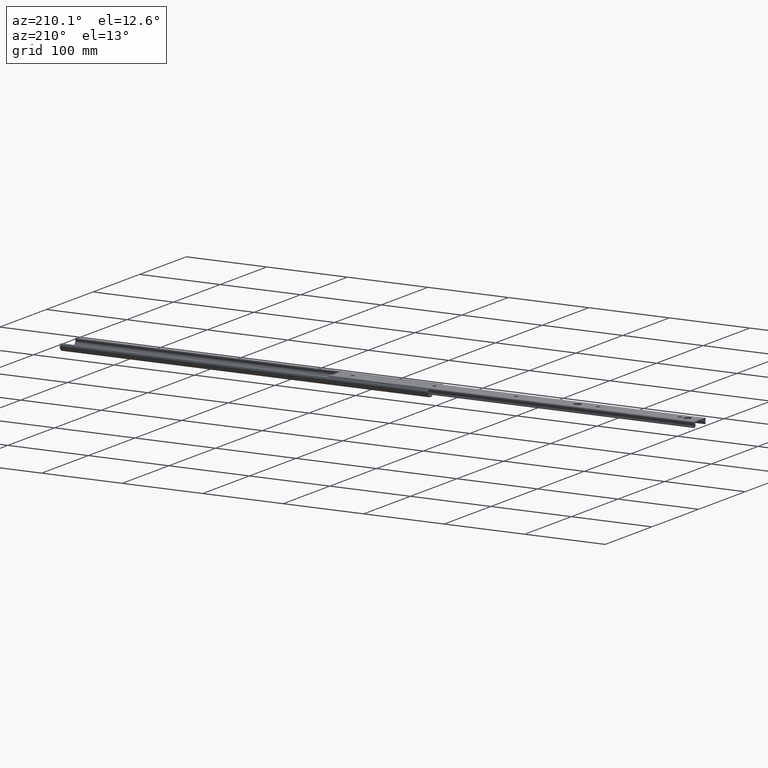
[diagram: clean part render]
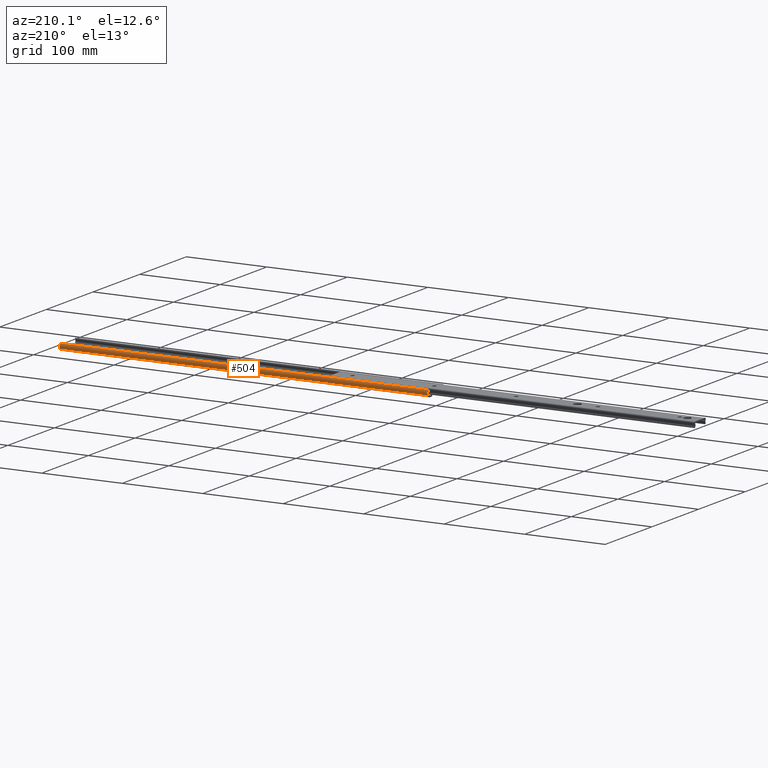
[diagram: same view with one face highlighted and labeled with its STEP entity id]
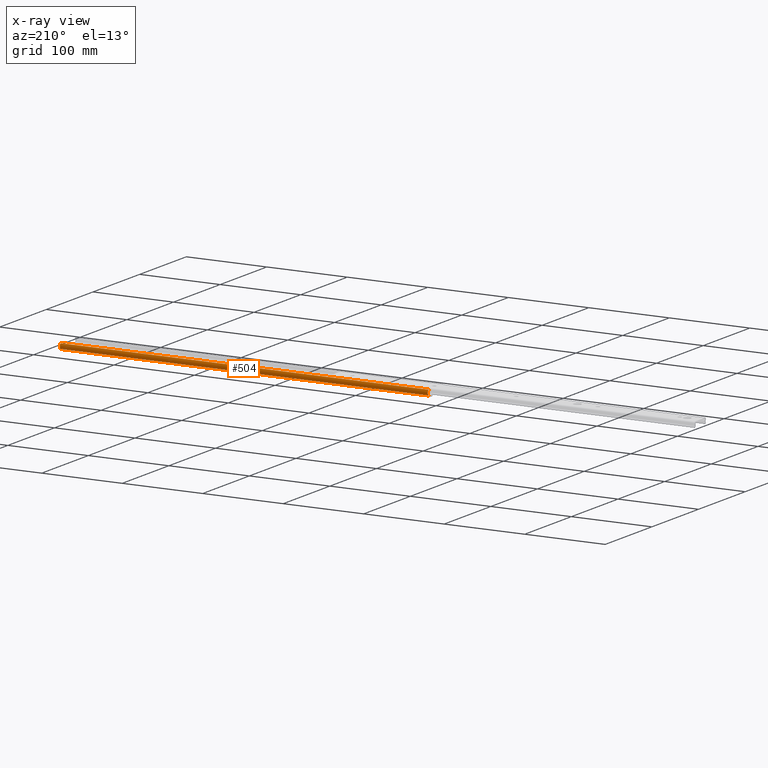
[diagram: x-ray of the same camera — body ghosted, the highlighted face saturated]
A machine part, auxiliary view. The second image highlights one B-rep face of the part: STEP entity #504.
The next image is the same camera in x-ray: the body ghosted, the highlighted face saturated — about 0% of this face is hidden behind the body in this view.
In plain terms, the highlighted cylindrical surface (edge-blend (fillet) strip) has radius 4.1 mm, axis along (-1, -0, -0).
Its self-contained STEP definition (entity closure, byte-faithful):
#112 = EDGE_CURVE ( 'NONE', #824, #4082, #1207, .T. ) ;
#167 = DIRECTION ( 'NONE',  ( 1.000000000000000000, 0.0000000000000000000, 0.0000000000000000000 ) ) ;
#245 = VECTOR ( 'NONE', #1671, 1000.000000000000000 ) ;
#380 = VERTEX_POINT ( 'NONE', #3565 ) ;
#504 = ADVANCED_FACE ( 'NONE', ( #1201 ), #1109, .T. ) ;
#606 = ORIENTED_EDGE ( 'NONE', *, *, #3514, .T. ) ;
#635 = EDGE_CURVE ( 'NONE', #380, #2536, #3069, .T. ) ;
#824 = VERTEX_POINT ( 'NONE', #1551 ) ;
#855 = CARTESIAN_POINT ( 'NONE',  ( 457.1999999999999900, 13.54999999999967700, 5.299999999999384300 ) ) ;
#922 = AXIS2_PLACEMENT_3D ( 'NONE', #855, #3095, #1162 ) ;
#1054 = AXIS2_PLACEMENT_3D ( 'NONE', #2110, #167, #2429 ) ;
#1109 = CYLINDRICAL_SURFACE ( 'NONE', #2548, 4.099999999999988100 ) ;
#1162 = DIRECTION ( 'NONE',  ( 0.0000000000000000000, 0.0000000000000000000, -1.000000000000000000 ) ) ;
#1201 = FACE_OUTER_BOUND ( 'NONE', #2307, .T. ) ;
#1207 = LINE ( 'NONE', #3578, #245 ) ;
#1277 = DIRECTION ( 'NONE',  ( -1.000000000000000000, -0.0000000000000000000, -0.0000000000000000000 ) ) ;
#1354 = DIRECTION ( 'NONE',  ( -1.000000000000000000, -0.0000000000000000000, -0.0000000000000000000 ) ) ;
#1551 = CARTESIAN_POINT ( 'NONE',  ( 457.1999999999999900, 15.68541565040558400, 8.799999999999585000 ) ) ;
#1671 = DIRECTION ( 'NONE',  ( -1.000000000000000000, -0.0000000000000000000, -0.0000000000000000000 ) ) ;
#1744 = CIRCLE ( 'NONE', #922, 4.099999999999988100 ) ;
#1965 = CARTESIAN_POINT ( 'NONE',  ( 457.1999999999999900, 16.45999190110085700, 2.411757085089796200 ) ) ;
#1992 = DIRECTION ( 'NONE',  ( 0.0000000000000000000, 0.0000000000000000000, 1.000000000000000000 ) ) ;
#2110 = CARTESIAN_POINT ( 'NONE',  ( 0.0000000000000000000, 13.54999999999967700, 5.299999999999384300 ) ) ;
#2220 = VECTOR ( 'NONE', #1277, 1000.000000000000000 ) ;
#2307 = EDGE_LOOP ( 'NONE', ( #606, #3343, #3566, #2572 ) ) ;
#2429 = DIRECTION ( 'NONE',  ( 0.0000000000000000000, 0.0000000000000000000, -1.000000000000000000 ) ) ;
#2536 = VERTEX_POINT ( 'NONE', #3524 ) ;
#2544 = CIRCLE ( 'NONE', #1054, 4.099999999999988100 ) ;
#2548 = AXIS2_PLACEMENT_3D ( 'NONE', #3011, #1354, #1992 ) ;
#2572 = ORIENTED_EDGE ( 'NONE', *, *, #635, .T. ) ;
#3011 = CARTESIAN_POINT ( 'NONE',  ( 457.1999999999999900, 13.54999999999967700, 5.299999999999384300 ) ) ;
#3069 = LINE ( 'NONE', #1965, #2220 ) ;
#3095 = DIRECTION ( 'NONE',  ( 1.000000000000000000, 0.0000000000000000000, 0.0000000000000000000 ) ) ;
#3273 = EDGE_CURVE ( 'NONE', #380, #824, #1744, .T. ) ;
#3343 = ORIENTED_EDGE ( 'NONE', *, *, #112, .F. ) ;
#3514 = EDGE_CURVE ( 'NONE', #2536, #4082, #2544, .T. ) ;
#3524 = CARTESIAN_POINT ( 'NONE',  ( 0.0000000000000000000, 16.45999190110085700, 2.411757085089796200 ) ) ;
#3565 = CARTESIAN_POINT ( 'NONE',  ( 457.1999999999999900, 16.45999190110085700, 2.411757085089796200 ) ) ;
#3566 = ORIENTED_EDGE ( 'NONE', *, *, #3273, .F. ) ;
#3578 = CARTESIAN_POINT ( 'NONE',  ( 457.1999999999999900, 15.68541565040558400, 8.799999999999585000 ) ) ;
#3870 = CARTESIAN_POINT ( 'NONE',  ( 0.0000000000000000000, 15.68541565040558400, 8.799999999999585000 ) ) ;
#4082 = VERTEX_POINT ( 'NONE', #3870 ) ;